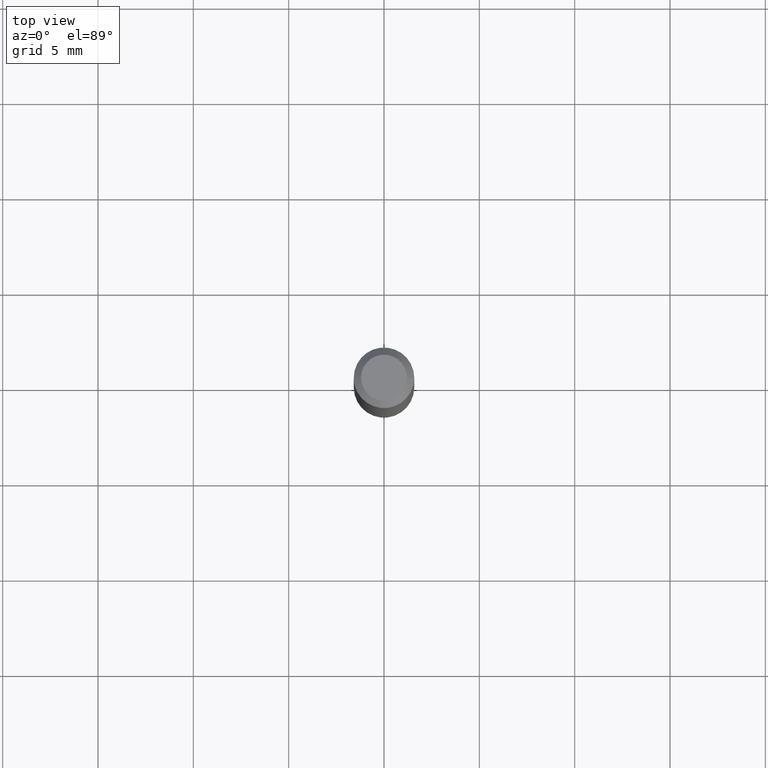
[diagram: clean part render]
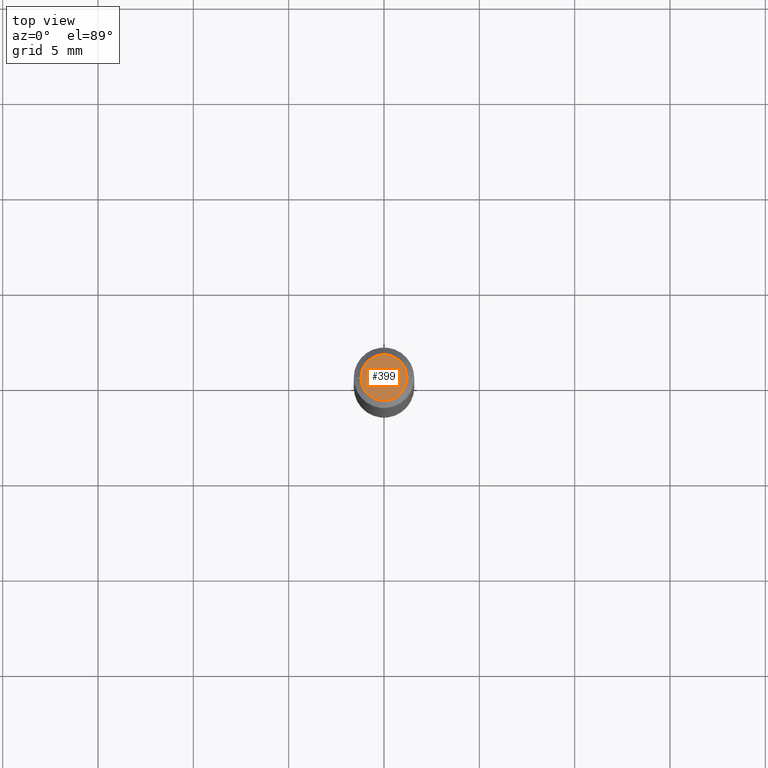
[diagram: same view with one face highlighted and labeled with its STEP entity id]
A machine part, top view. The second image highlights one B-rep face of the part: STEP entity #399.
In plain terms, the highlighted planar face has unit normal (0, -0, -1).
Its self-contained STEP definition (entity closure, byte-faithful):
#22 = CIRCLE ( 'NONE', #427, 0.04749999999999999362 ) ;
#34 = CARTESIAN_POINT ( 'NONE',  ( 3.316907271900976096E-16, 0.04749999999999999362, -1.224772766956247324E-16 ) ) ;
#50 = VERTEX_POINT ( 'NONE', #318 ) ;
#85 = EDGE_CURVE ( 'NONE', #50, #168, #22, .T. ) ;
#87 = ORIENTED_EDGE ( 'NONE', *, *, #85, .T. ) ;
#124 = ORIENTED_EDGE ( 'NONE', *, *, #358, .T. ) ;
#132 = EDGE_LOOP ( 'NONE', ( #87, #124 ) ) ;
#168 = VERTEX_POINT ( 'NONE', #361 ) ;
#183 = CARTESIAN_POINT ( 'NONE',  ( -2.121106073929386760E-45, 3.028377322213383622E-31, 8.673617379884936499E-17 ) ) ;
#191 = AXIS2_PLACEMENT_3D ( 'NONE', #183, #298, #429 ) ;
#264 = FACE_OUTER_BOUND ( 'NONE', #132, .T. ) ;
#291 = CIRCLE ( 'NONE', #191, 0.04749999999999999362 ) ;
#298 = DIRECTION ( 'NONE',  ( -2.445468806185136597E-29, 3.491481338843145583E-15, 1.000000000000000000 ) ) ;
#318 = CARTESIAN_POINT ( 'NONE',  ( -0.04749999999999999362, 3.578768372314211985E-16, 8.673617379884694910E-17 ) ) ;
#353 = DIRECTION ( 'NONE',  ( 1.000000000000000000, -6.982962677686267499E-15, 4.884662768193073002E-29 ) ) ;
#358 = EDGE_CURVE ( 'NONE', #168, #50, #291, .T. ) ;
#361 = CARTESIAN_POINT ( 'NONE',  ( 0.04749999999999999362, -4.035134999187577144E-16, 8.673617379885194112E-17 ) ) ;
#367 = PLANE ( 'NONE',  #428 ) ;
#391 = DIRECTION ( 'NONE',  ( -2.445468806185136597E-29, 3.491481338843145583E-15, 1.000000000000000000 ) ) ;
#399 = ADVANCED_FACE ( 'NONE', ( #264 ), #367, .F. ) ;
#427 = AXIS2_PLACEMENT_3D ( 'NONE', #463, #391, #353 ) ;
#428 = AXIS2_PLACEMENT_3D ( 'NONE', #34, #443, #451 ) ;
#429 = DIRECTION ( 'NONE',  ( 1.000000000000000000, -6.982962677686267499E-15, 4.884662768193073002E-29 ) ) ;
#443 = DIRECTION ( 'NONE',  ( 2.438088387897960049E-29, -3.491481338843145188E-15, -1.000000000000000000 ) ) ;
#451 = DIRECTION ( 'NONE',  ( -1.000000000000000000, 6.982962677686265922E-15, -4.876176775795935793E-29 ) ) ;
#463 = CARTESIAN_POINT ( 'NONE',  ( -2.121106073929386760E-45, 3.028377322213383622E-31, 8.673617379884936499E-17 ) ) ;